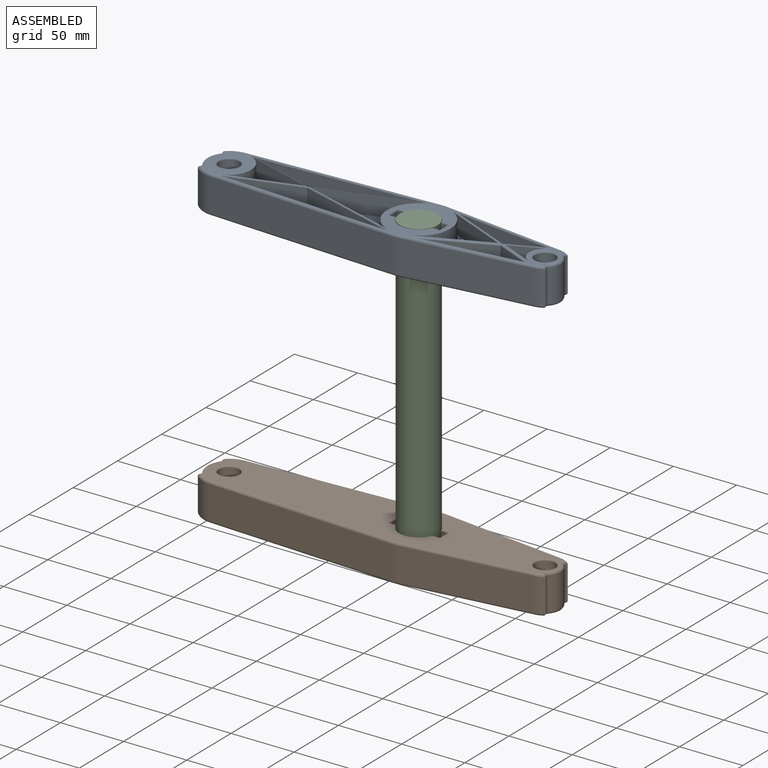
[diagram: assembled view]
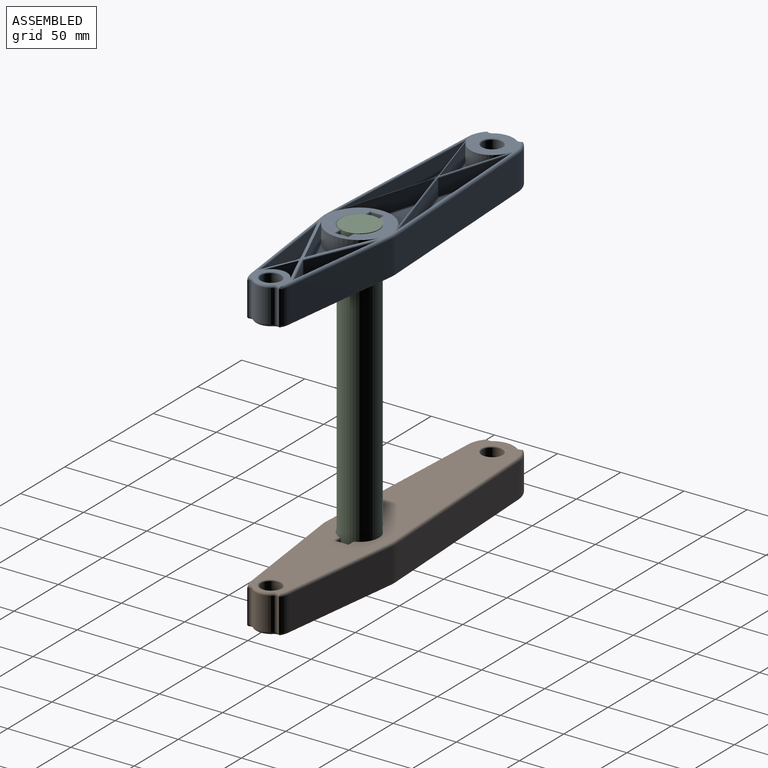
[diagram: assembled view, second angle]
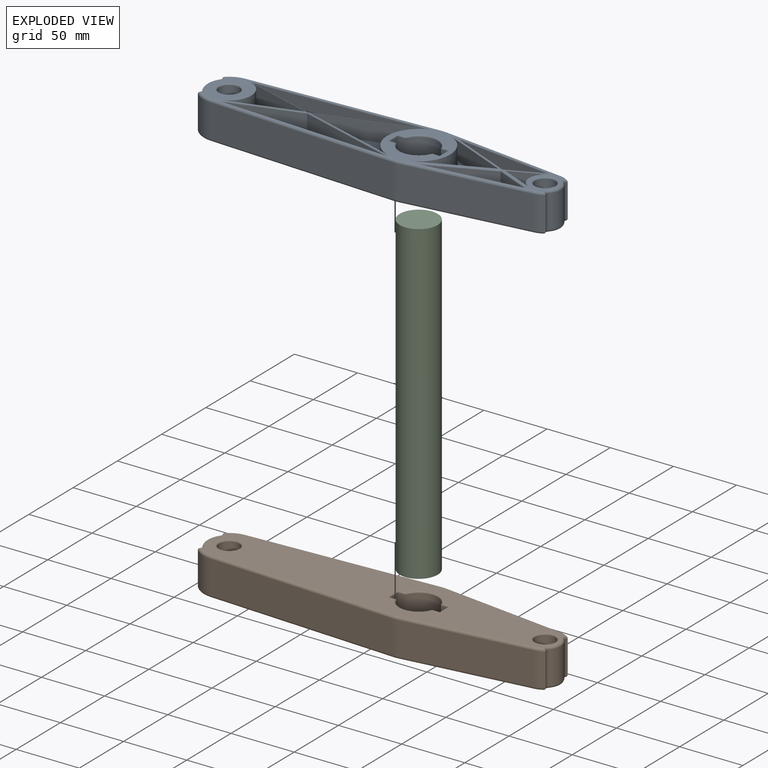
[diagram: exploded view]
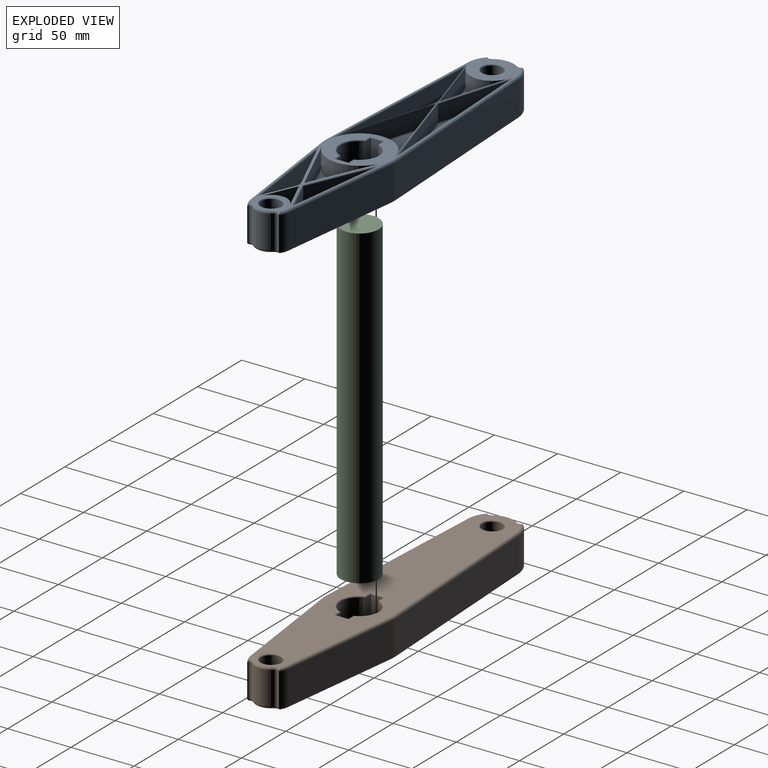
[diagram: exploded view, second angle]
ASSEMBLY  parts=3 mates=2
PART A: 153 faces, bbox 282.5x56.2x30.3 mm
  f0: plane 36.97x33mm, normal (0,0,1), area 686.9mm2, adj f39,f61,f62,f63,f65,f67,f69,f71
  f1: plane 55.3x16.75mm, normal (-0.29,-0.96,0), area 808.9mm2, adj f2,f39,f114,f149
  f2: plane 55.3x16.75mm, normal (-0.29,0.96,0), area 808.9mm2, adj f1,f39,f112,f147
  f3: cylinder r=15mm len=28.28mm, axis (0,0,-1), area 1034mm2, adj f4,f40,f100,f121
  f4: plane 28x5.86mm, normal (0,1,0), area 164mm2, adj f3,f5,f98,f119
  f5: plane 28x10mm, normal (1,0,0), area 280mm2, adj f4,f6,f96,f117
  f6: plane 28x5.86mm, normal (0,-1,0), area 164mm2, adj f5,f7,f94,f115
  f7: cylinder r=15mm len=28.28mm, axis (0,0,-1), area 1034mm2, adj f6,f8,f95,f116
  f8: plane 28x5.86mm, normal (0,-1,0), area 164mm2, adj f7,f9,f97,f118
  f9: plane 28x10mm, normal (-1,0,0), area 280mm2, adj f8,f40,f99,f120
  f10: plane 78.99x23.93mm, normal (0.29,-0.96,0), area 1155.5mm2, adj f11,f41,f111,f143
  f11: cylinder r=25mm len=47.85mm, axis (0,0,-1), area 893.7mm2, adj f10,f41,f51,f108,f111,f141
  f12: plane 52.69x22.92mm, normal (-0.4,-0.92,0), area 804.4mm2, adj f13,f42,f51,f130
  f13: plane 52.69x22.92mm, normal (-0.4,0.92,0), area 804.4mm2, adj f12,f42,f51,f129
  f14: plane 50.52x21.98mm, normal (0.4,0.92,0), area 716.3mm2, adj f15,f43,f125,f134
  f15: plane 78.36x13mm, normal (-0.12,-0.99,0), area 1026.7mm2, adj f14,f43,f124,f133
  f16: plane 136.55x13mm, normal (0.05,-1,0), area 1777.4mm2, adj f17,f44,f113,f145
  f17: plane 79.56x24.1mm, normal (-0.29,0.96,0), area 1080.7mm2, adj f16,f44,f111,f144
  f18: plane 79.56x24.1mm, normal (-0.29,-0.96,0), area 1080.7mm2, adj f19,f45,f108,f150
  f19: plane 136.55x13mm, normal (0.05,1,0), area 1777.4mm2, adj f18,f45,f109,f151
  f20: plane 78.36x13mm, normal (-0.12,0.99,0), area 1026.7mm2, adj f21,f46,f127,f139
  f21: plane 50.52x21.98mm, normal (0.4,-0.92,0), area 716.3mm2, adj f20,f46,f128,f140
  f22: cylinder r=12.5mm len=22.92mm, axis (0,0,-1), area 406.1mm2, adj f23,f47,f51,f135
  f23: plane 26.34x14mm, normal (0.4,0.92,0), area 402.2mm2, adj f22,f47,f51,f136
  f24: cylinder r=3mm len=26mm, axis (0,0,-1), area 115mm2, adj f25,f49,f70,f78
  f25: cylinder r=12.5mm len=26mm, axis (0,0,-1), area 483.8mm2, adj f24,f26,f72,f80
  f26: cylinder r=3mm len=26mm, axis (0,0,-1), area 115mm2, adj f25,f27,f74,f82
  f27: cylinder r=15.5mm len=26mm, axis (0,0,-1), area 204.5mm2, adj f26,f28,f76,f84
  f28: plane 98.44x26mm, normal (0.12,0.99,0), area 2579.6mm2, adj f27,f29,f75,f86
  f29: cylinder r=28mm len=26mm, axis (0,0,-1), area 127.7mm2, adj f28,f30,f73,f88
  f30: plane 149.63x26mm, normal (-0.05,1,0), area 3895.1mm2, adj f29,f31,f71,f90
  f31: cylinder r=20.5mm len=26mm, axis (0,0,-1), area 411.5mm2, adj f30,f32,f69,f92
  f32: cylinder r=3mm len=26mm, axis (0,0,-1), area 116.8mm2, adj f31,f33,f67,f91
  f33: cylinder r=17.5mm len=26mm, axis (0,0,-1), area 548mm2, adj f32,f34,f65,f89
  f34: cylinder r=3mm len=26mm, axis (0,0,-1), area 116.8mm2, adj f33,f35,f63,f87
  f35: cylinder r=20.5mm len=26mm, axis (0,0,-1), area 411.5mm2, adj f34,f36,f61,f85
  f36: plane 149.63x26mm, normal (-0.05,-1,0), area 3895.1mm2, adj f35,f37,f62,f83
  f37: cylinder r=28mm len=26mm, axis (0,0,-1), area 127.7mm2, adj f36,f38,f64,f81
  f38: plane 98.44x26mm, normal (0.12,-0.99,0), area 2579.6mm2, adj f37,f49,f66,f79
  f39: cylinder r=17.5mm len=33.5mm, axis (0,0,-1), area 625.6mm2, adj f0,f1,f2,f112,f114,f148
  f40: plane 28x5.86mm, normal (0,1,0), area 164mm2, adj f3,f9,f101,f122
  f41: plane 78.99x23.93mm, normal (0.29,0.96,0), area 1155.5mm2, adj f10,f11,f108,f142
  f42: cylinder r=25mm len=45.85mm, axis (0,0,-1), area 812.3mm2, adj f12,f13,f51,f131
  f43: plane 27.83x13mm, normal (-0.4,0.92,0), area 394.6mm2, adj f14,f15,f123,f132
  f44: plane 56.99x17.26mm, normal (0.29,0.96,0), area 774.1mm2, adj f16,f17,f114,f146
  f45: plane 56.99x17.26mm, normal (0.29,-0.96,0), area 774.1mm2, adj f18,f19,f112,f152
  f46: plane 27.83x13mm, normal (-0.4,-0.92,0), area 394.6mm2, adj f20,f21,f126,f138
  f47: plane 26.34x14mm, normal (0.4,-0.92,0), area 402.2mm2, adj f22,f23,f51,f137
  f48: cylinder r=8mm len=28mm, axis (0,0,-1), area 1407.4mm2, adj f102,f103
  f49: cylinder r=15.5mm len=26mm, axis (0,0,-1), area 204.5mm2, adj f24,f38,f68,f77
  f50: cylinder r=8mm len=28mm, axis (0,0,-1), area 1407.4mm2, adj f93,f104
  f51: plane 135.5x52mm, normal (0,0,1), area 1531.2mm2, adj f11,f12,f13,f22,f23,f42,f47,f64
  f52: plane 276x52mm, normal (0,0,-1), area 9894.9mm2, adj f77,f78,f79,f80,f81,f82,f83,f84
  f53: plane 44.13x26.73mm, normal (0,0,1), area 484.4mm2, adj f147,f148,f149
  f54: plane 66.26x40.14mm, normal (0,0,1), area 1065.5mm2, adj f141,f142,f143
  f55: plane 41.41x36.04mm, normal (0,0,1), area 566.3mm2, adj f129,f130,f131
  f56: plane 122.66x21.65mm, normal (0,0,1), area 1108.2mm2, adj f144,f145,f146
  f57: plane 122.66x21.65mm, normal (0,0,1), area 1108.2mm2, adj f150,f151,f152
  f58: plane 17.75x15.45mm, normal (0,0,1), area 111.6mm2, adj f135,f136,f137
  f59: plane 67.83x19.03mm, normal (0,0,1), area 458.5mm2, adj f132,f133,f134
  f60: plane 67.83x19.03mm, normal (0,0,1), area 458.5mm2, adj f138,f139,f140
  f61: torus R=18.5mm, axis (0,0,1), area 45.2mm2, adj f0,f35,f62,f63
  f62: cylinder r=2mm len=149.73mm, axis (-1,0.05,0), area 470.6mm2, adj f0,f36,f61,f64,f109
  f63: torus R=5mm, axis (0,0,1), area 14.6mm2, adj f0,f34,f61,f65
  f64: torus R=26mm, axis (0,0,1), area 15mm2, adj f37,f51,f62,f66,f105,f106
  f65: torus R=15.5mm, axis (0,0,1), area 63.5mm2, adj f0,f33,f63,f67
  f66: cylinder r=2mm len=98.69mm, axis (-0.99,-0.12,0), area 311.7mm2, adj f38,f51,f64,f68,f127
  f67: torus R=5mm, axis (0,0,1), area 14.6mm2, adj f0,f32,f65,f69
  f68: torus R=13.5mm, axis (0,0,1), area 20.7mm2, adj f49,f51,f66,f70
  f69: torus R=18.5mm, axis (0,0,1), area 45.2mm2, adj f0,f31,f67,f71
  f70: torus R=5mm, axis (0,0,1), area 14.3mm2, adj f24,f51,f68,f72
  f71: cylinder r=2mm len=149.73mm, axis (1,0.05,0), area 470.6mm2, adj f0,f30,f69,f73,f113
  f72: torus R=10.5mm, axis (0,0,1), area 55.1mm2, adj f25,f51,f70,f74
  f73: torus R=26mm, axis (0,0,1), area 15mm2, adj f29,f51,f71,f75,f107,f110
  f74: torus R=5mm, axis (0,0,1), area 14.3mm2, adj f26,f51,f72,f76
  f75: cylinder r=2mm len=98.69mm, axis (0.99,-0.12,0), area 311.7mm2, adj f28,f51,f73,f76,f124
  f76: torus R=13.5mm, axis (0,0,1), area 20.7mm2, adj f27,f51,f74,f75
  f77: torus R=13.5mm, axis (0,0,1), area 20.7mm2, adj f49,f52,f78,f79
  f78: torus R=5mm, axis (0,0,1), area 14.3mm2, adj f24,f52,f77,f80
  f79: cylinder r=2mm len=98.69mm, axis (0.99,0.12,0), area 311.7mm2, adj f38,f52,f77,f81
  f80: torus R=10.5mm, axis (0,0,1), area 55.1mm2, adj f25,f52,f78,f82
  f81: torus R=26mm, axis (0,0,1), area 15mm2, adj f37,f52,f79,f83
  f82: torus R=5mm, axis (0,0,1), area 14.3mm2, adj f26,f52,f80,f84
  f83: cylinder r=2mm len=149.73mm, axis (1,-0.05,0), area 470.6mm2, adj f36,f52,f81,f85
  f84: torus R=13.5mm, axis (0,0,1), area 20.7mm2, adj f27,f52,f82,f86
  f85: torus R=18.5mm, axis (0,0,1), area 45.2mm2, adj f35,f52,f83,f87
  f86: cylinder r=2mm len=98.69mm, axis (-0.99,0.12,0), area 311.7mm2, adj f28,f52,f84,f88
  f87: torus R=5mm, axis (0,0,1), area 14.6mm2, adj f34,f52,f85,f89
  f88: torus R=26mm, axis (0,0,1), area 15mm2, adj f29,f52,f86,f90
  f89: torus R=15.5mm, axis (0,0,1), area 63.5mm2, adj f33,f52,f87,f91
  f90: cylinder r=2mm len=149.73mm, axis (-1,-0.05,0), area 470.6mm2, adj f30,f52,f88,f92
  f91: torus R=5mm, axis (0,0,1), area 14.6mm2, adj f32,f52,f89,f92
  f92: torus R=18.5mm, axis (0,0,1), area 45.2mm2, adj f31,f52,f90,f91
  f93: torus R=9mm, axis (0,0,1), area 82.5mm2, adj f50,f52
  f94: cylinder r=1mm len=6.86mm, axis (1,0,0), area 9.4mm2, adj f6,f52,f95,f96
  f95: torus R=16mm, axis (0,0,1), area 58.3mm2, adj f7,f52,f94,f97
  f96: cylinder r=1mm len=12mm, axis (0,1,0), area 17.3mm2, adj f5,f52,f94,f98
  f97: cylinder r=1mm len=6.86mm, axis (1,0,0), area 9.4mm2, adj f8,f52,f95,f99
  f98: cylinder r=1mm len=6.86mm, axis (-1,0,0), area 9.4mm2, adj f4,f52,f96,f100
  f99: cylinder r=1mm len=12mm, axis (0,-1,0), area 17.3mm2, adj f9,f52,f97,f101
  f100: torus R=16mm, axis (0,0,1), area 58.3mm2, adj f3,f52,f98,f101
  f101: cylinder r=1mm len=6.86mm, axis (-1,0,0), area 9.4mm2, adj f40,f52,f99,f100
  f102: torus R=9mm, axis (0,0,1), area 82.5mm2, adj f48,f52
  f103: torus R=9mm, axis (0,0,1), area 82.5mm2, adj f48,f51
  f104: torus R=9mm, axis (0,0,1), area 82.5mm2, adj f0,f50
  f105: bspline ~2.24x1.86mm, area 0mm2, adj f64,f106,f108
  f106: bspline ~3.39x1.24mm, area 0.1mm2, adj f64,f105,f108,f109
  f107: bspline ~2.24x1.86mm, area 0mm2, adj f73,f110,f111
  f108: cylinder r=1mm len=87.73mm, axis (-0.96,0.29,0), area 133.6mm2, adj f11,f18,f41,f51,f105,f106,f109,f111
  f109: cylinder r=1mm len=149.47mm, axis (1,-0.05,0), area 222.6mm2, adj f19,f62,f106,f108,f112
  f110: bspline ~2.39x1.19mm, area 0.1mm2, adj f73,f107,f111,f113
  f111: cylinder r=1mm len=87.73mm, axis (0.96,0.29,0), area 133.6mm2, adj f10,f11,f17,f51,f107,f108,f110,f113
  f112: cylinder r=1mm len=62.93mm, axis (-0.96,-0.29,0), area 95.6mm2, adj f0,f2,f39,f45,f108,f109,f114
  f113: cylinder r=1mm len=149.47mm, axis (-1,-0.05,0), area 222.6mm2, adj f16,f71,f110,f111,f114
  f114: cylinder r=1mm len=62.93mm, axis (0.96,-0.29,0), area 95.6mm2, adj f0,f1,f39,f44,f111,f112,f113
  f115: cylinder r=1mm len=6.86mm, axis (-1,0,0), area 9.4mm2, adj f6,f51,f116,f117
  f116: torus R=16mm, axis (0,0,1), area 58.3mm2, adj f7,f51,f115,f118
  f117: cylinder r=1mm len=12mm, axis (0,-1,0), area 17.3mm2, adj f5,f51,f115,f119
  f118: cylinder r=1mm len=6.86mm, axis (-1,0,0), area 9.4mm2, adj f8,f51,f116,f120
  f119: cylinder r=1mm len=6.86mm, axis (1,0,0), area 9.4mm2, adj f4,f51,f117,f121
  f120: cylinder r=1mm len=12mm, axis (0,1,0), area 17.3mm2, adj f9,f51,f118,f122
  f121: torus R=16mm, axis (0,0,1), area 58.3mm2, adj f3,f51,f119,f122
  f122: cylinder r=1mm len=6.86mm, axis (1,0,0), area 9.4mm2, adj f40,f51,f120,f121
  f123: cylinder r=1mm len=31.97mm, axis (0.92,0.4,0), area 50.1mm2, adj f43,f51,f124,f125
  f124: cylinder r=1mm len=89.01mm, axis (-0.99,0.12,0), area 132.4mm2, adj f15,f75,f123,f125
  f125: cylinder r=1mm len=57.71mm, axis (0.92,-0.4,0), area 90.9mm2, adj f14,f51,f123,f124
  f126: cylinder r=1mm len=31.97mm, axis (-0.92,0.4,0), area 50.1mm2, adj f46,f51,f127,f128
  f127: cylinder r=1mm len=89.01mm, axis (0.99,0.12,0), area 132.4mm2, adj f20,f66,f126,f128
  f128: cylinder r=1mm len=57.71mm, axis (-0.92,-0.4,0), area 90.9mm2, adj f21,f51,f126,f127
  f129: cylinder r=1mm len=53.09mm, axis (-0.92,-0.4,0), area 80.6mm2, adj f13,f55,f130,f131
  f130: cylinder r=1mm len=53.09mm, axis (0.92,-0.4,0), area 80.6mm2, adj f12,f55,f129,f131
  f131: torus R=26mm, axis (0,0,1), area 76.6mm2, adj f42,f55,f129,f130
  f132: cylinder r=1mm len=28.23mm, axis (-0.92,-0.4,0), area 45.3mm2, adj f43,f59,f133,f134
  f133: cylinder r=1mm len=78.48mm, axis (0.99,-0.12,0), area 115.7mm2, adj f15,f59,f132,f134
  f134: cylinder r=1mm len=50.92mm, axis (-0.92,0.4,0), area 82.2mm2, adj f14,f59,f132,f133
  f135: torus R=13.5mm, axis (0,0,1), area 35.6mm2, adj f22,f58,f136,f137
  f136: cylinder r=1mm len=26.74mm, axis (-0.92,0.4,0), area 37.8mm2, adj f23,f58,f135,f137
  f137: cylinder r=1mm len=26.74mm, axis (0.92,0.4,0), area 37.8mm2, adj f47,f58,f135,f136
  f138: cylinder r=1mm len=28.23mm, axis (0.92,-0.4,0), area 45.3mm2, adj f46,f60,f139,f140
  f139: cylinder r=1mm len=78.48mm, axis (-0.99,-0.12,0), area 115.7mm2, adj f20,f60,f138,f140
  f140: cylinder r=1mm len=50.92mm, axis (0.92,0.4,0), area 82.2mm2, adj f21,f60,f138,f139
  f141: torus R=26mm, axis (0,0,1), area 85.9mm2, adj f11,f54,f142,f143
  f142: cylinder r=1mm len=79.28mm, axis (-0.96,0.29,0), area 119.2mm2, adj f41,f54,f141,f143
  f143: cylinder r=1mm len=79.28mm, axis (0.96,0.29,0), area 119.2mm2, adj f10,f54,f141,f142
  f144: cylinder r=1mm len=79.85mm, axis (-0.96,-0.29,0), area 125.7mm2, adj f17,f56,f145,f146
  f145: cylinder r=1mm len=136.6mm, axis (1,0.05,0), area 203.8mm2, adj f16,f56,f144,f146
  f146: cylinder r=1mm len=57.28mm, axis (-0.96,0.29,0), area 90mm2, adj f44,f56,f144,f145
  f147: cylinder r=1mm len=55.59mm, axis (-0.96,-0.29,0), area 81.6mm2, adj f2,f53,f148,f149
  f148: torus R=18.5mm, axis (0,0,1), area 58.4mm2, adj f39,f53,f147,f149
  f149: cylinder r=1mm len=55.59mm, axis (0.96,-0.29,0), area 81.6mm2, adj f1,f53,f147,f148
  f150: cylinder r=1mm len=79.85mm, axis (0.96,-0.29,0), area 125.7mm2, adj f18,f57,f151,f152
  f151: cylinder r=1mm len=136.6mm, axis (-1,0.05,0), area 203.8mm2, adj f19,f57,f150,f152
  f152: cylinder r=1mm len=57.28mm, axis (0.96,0.29,0), area 90mm2, adj f45,f57,f150,f151
PART B: same geometry as A
PART C: 3 faces, bbox 250.2x30x30 mm
  f0: plane 30x30mm, normal (-1,0,0), area 706.9mm2, adj f2
  f1: plane 30x30mm, normal (1,0,0), area 706.9mm2, adj f2
  f2: cylinder r=15mm len=250.16mm, axis (1,0,0), area 23576.6mm2, adj f0,f1
PLACE A rot(axis=(0,1,0),0deg) t=(-30.82,-35.42,98.14)mm
PLACE B rot(axis=(-1,0,0),180deg) t=(-30.82,-18.92,-92.02)mm
PLACE C rot(axis=(0,-1,0),90deg) t=(-22.44,-27.17,-122.02)mm
MATE fastened C.f2 <-> B.f3  axis (0,0,1) through (-22.44,-27.17,-122.02)mm
MATE fastened A.f3 <-> C.f2  axis (0,0,1) through (-22.44,-27.17,128.14)mm
